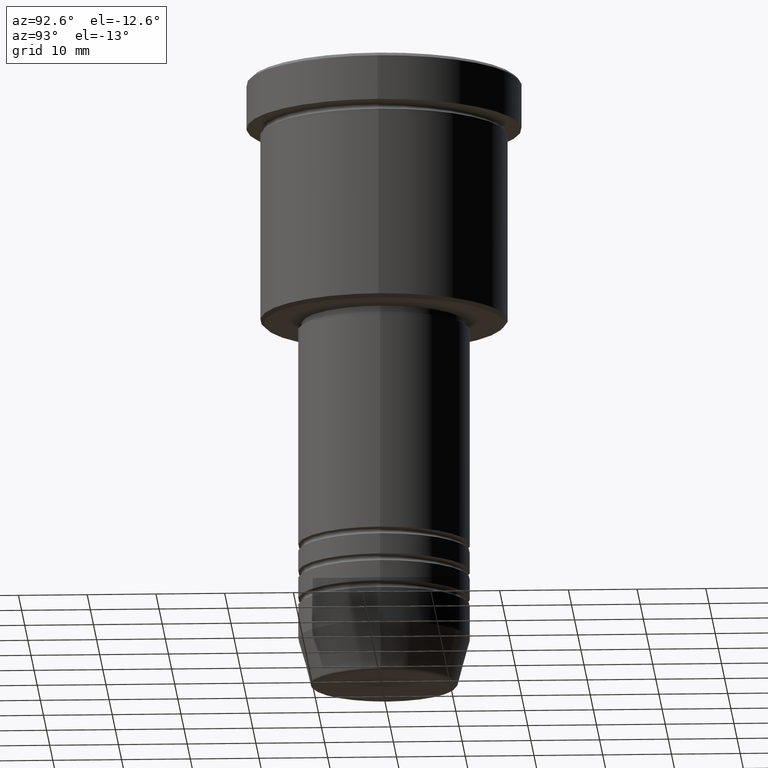
[diagram: clean part render]
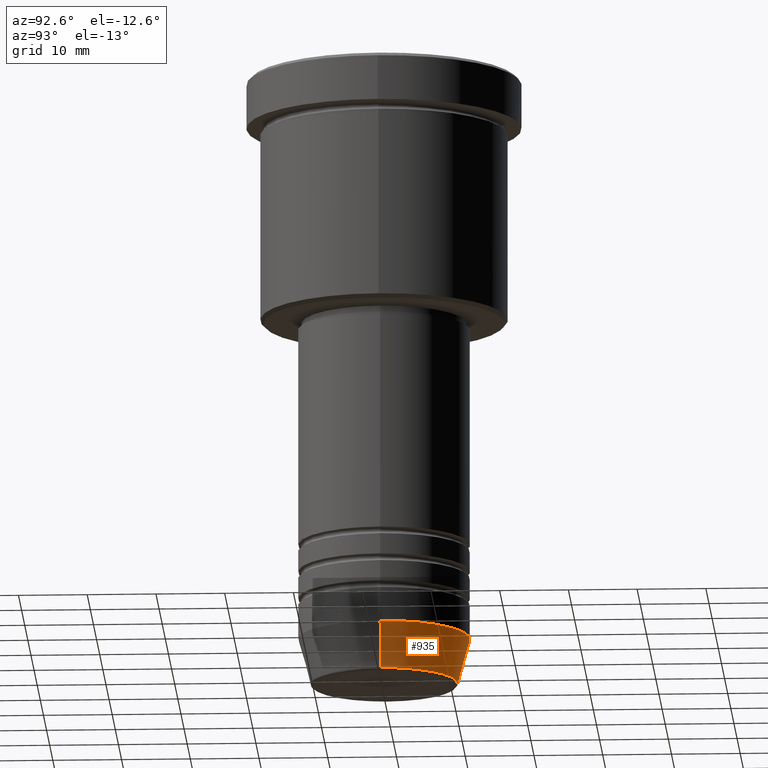
[diagram: same view with one face highlighted and labeled with its STEP entity id]
A machine part, auxiliary view. The second image highlights one B-rep face of the part: STEP entity #935.
In plain terms, the highlighted conical surface has half-angle 15 deg.
Its self-contained STEP definition (entity closure, byte-faithful):
#10 = CARTESIAN_POINT ( 'NONE',  ( -10.72365507213718416, 1.422038742429749727E-15, -89.62940952255125637 ) ) ;
#29 = CARTESIAN_POINT ( 'NONE',  ( 0.000000000000000000, 0.000000000000000000, -82.99999999999998579 ) ) ;
#56 = CARTESIAN_POINT ( 'NONE',  ( 12.50000000000000000, 0.000000000000000000, -82.99999999999998579 ) ) ;
#98 = ORIENTED_EDGE ( 'NONE', *, *, #830, .T. ) ;
#108 = DIRECTION ( 'NONE',  ( -0.000000000000000000, -0.000000000000000000, 1.000000000000000000 ) ) ;
#111 = CARTESIAN_POINT ( 'NONE',  ( 12.50000000000000000, 0.000000000000000000, -82.99999999999998579 ) ) ;
#138 = EDGE_CURVE ( 'NONE', #989, #973, #1139, .T. ) ;
#178 = EDGE_CURVE ( 'NONE', #973, #600, #227, .T. ) ;
#227 = CIRCLE ( 'NONE', #613, 12.50000000000000000 ) ;
#244 = DIRECTION ( 'NONE',  ( 1.000000000000000000, 0.000000000000000000, 0.000000000000000000 ) ) ;
#274 = CARTESIAN_POINT ( 'NONE',  ( 10.72365507213718416, 0.000000000000000000, -89.62940952255125637 ) ) ;
#295 = DIRECTION ( 'NONE',  ( 1.000000000000000000, 0.000000000000000000, 0.000000000000000000 ) ) ;
#361 = VERTEX_POINT ( 'NONE', #10 ) ;
#376 = VECTOR ( 'NONE', #809, 1000.000000000000000 ) ;
#431 = CONICAL_SURFACE ( 'NONE', #1157, 12.50000000000000000, 0.2617993877991500740 ) ;
#449 = CARTESIAN_POINT ( 'NONE',  ( -12.50000000000000000, 1.530808498934191521E-15, -82.99999999999998579 ) ) ;
#489 = DIRECTION ( 'NONE',  ( 0.2588190451025213501, 0.000000000000000000, 0.9659258262890680902 ) ) ;
#493 = ORIENTED_EDGE ( 'NONE', *, *, #1006, .T. ) ;
#514 = CARTESIAN_POINT ( 'NONE',  ( 0.000000000000000000, 0.000000000000000000, -89.62940952255125637 ) ) ;
#519 = ORIENTED_EDGE ( 'NONE', *, *, #178, .F. ) ;
#568 = CIRCLE ( 'NONE', #947, 10.72365507213718416 ) ;
#600 = VERTEX_POINT ( 'NONE', #757 ) ;
#613 = AXIS2_PLACEMENT_3D ( 'NONE', #29, #1109, #1036 ) ;
#706 = DIRECTION ( 'NONE',  ( -0.000000000000000000, -0.000000000000000000, 1.000000000000000000 ) ) ;
#721 = CARTESIAN_POINT ( 'NONE',  ( 0.000000000000000000, 0.000000000000000000, -82.99999999999998579 ) ) ;
#727 = EDGE_LOOP ( 'NONE', ( #98, #493, #519, #795 ) ) ;
#757 = CARTESIAN_POINT ( 'NONE',  ( -12.50000000000000000, 1.530808498934191521E-15, -82.99999999999998579 ) ) ;
#795 = ORIENTED_EDGE ( 'NONE', *, *, #138, .F. ) ;
#809 = DIRECTION ( 'NONE',  ( -0.2588190451025213501, 3.169619151431772337E-17, 0.9659258262890680902 ) ) ;
#830 = EDGE_CURVE ( 'NONE', #989, #361, #568, .T. ) ;
#935 = ADVANCED_FACE ( 'NONE', ( #1179 ), #431, .T. ) ;
#947 = AXIS2_PLACEMENT_3D ( 'NONE', #514, #706, #244 ) ;
#973 = VERTEX_POINT ( 'NONE', #111 ) ;
#989 = VERTEX_POINT ( 'NONE', #274 ) ;
#993 = LINE ( 'NONE', #449, #376 ) ;
#1006 = EDGE_CURVE ( 'NONE', #361, #600, #993, .T. ) ;
#1036 = DIRECTION ( 'NONE',  ( 1.000000000000000000, 0.000000000000000000, 0.000000000000000000 ) ) ;
#1109 = DIRECTION ( 'NONE',  ( -0.000000000000000000, -0.000000000000000000, 1.000000000000000000 ) ) ;
#1139 = LINE ( 'NONE', #56, #1173 ) ;
#1157 = AXIS2_PLACEMENT_3D ( 'NONE', #721, #108, #295 ) ;
#1173 = VECTOR ( 'NONE', #489, 1000.000000000000000 ) ;
#1179 = FACE_OUTER_BOUND ( 'NONE', #727, .T. ) ;